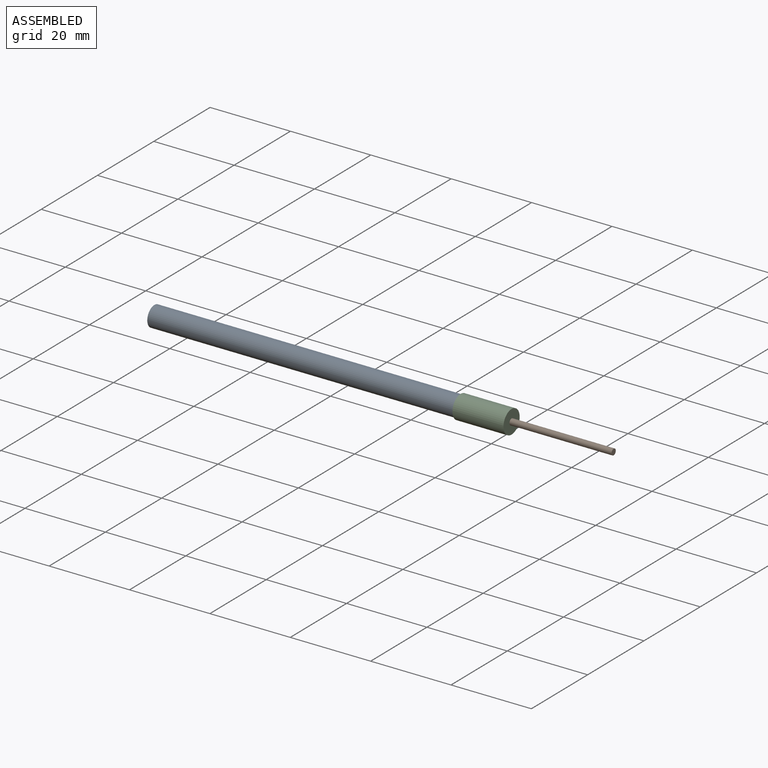
[diagram: assembled view]
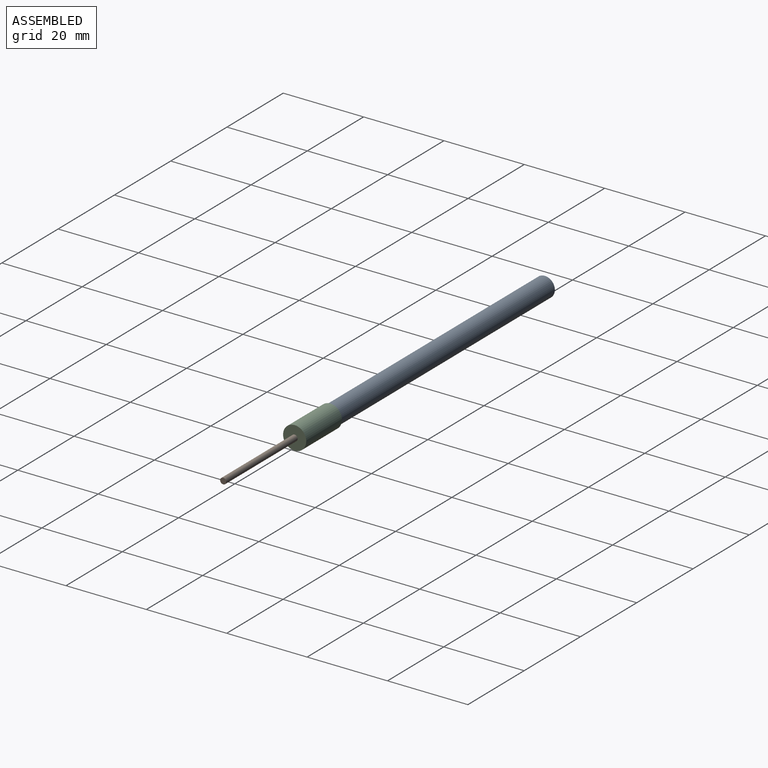
[diagram: assembled view, second angle]
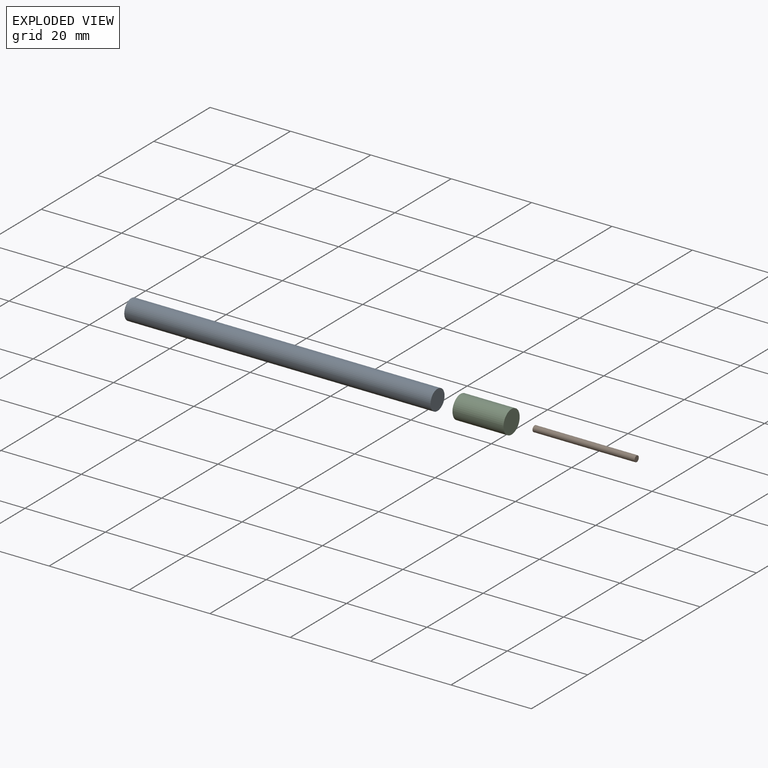
[diagram: exploded view]
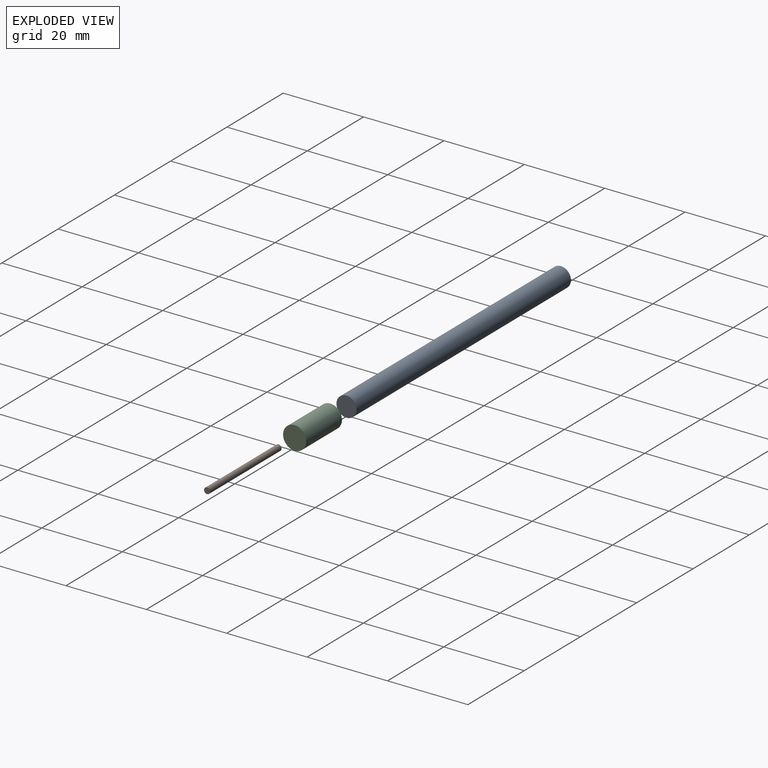
[diagram: exploded view, second angle]
ASSEMBLY  parts=3 mates=2
PART A: 3 faces, bbox 76.2x5x5 mm
  f0: plane 5x5mm, normal (1,0,0), area 19.6mm2, adj f1
  f1: cylinder r=2.5mm len=76.2mm, axis (-1,0,0), area 1196.9mm2, adj f0,f2
  f2: plane 5x5mm, normal (-1,0,0), area 19.6mm2, adj f1
PART B: 3 faces, bbox 25.4x1.5x1.5 mm
  f0: plane 1.5x1.5mm, normal (-1,0,0), area 1.8mm2, adj f2
  f1: plane 1.5x1.5mm, normal (1,0,0), area 1.8mm2, adj f2
  f2: cylinder r=0.75mm len=25.4mm, axis (-1,0,0), area 119.7mm2, adj f0,f1
PART C: 3 faces, bbox 12.7x5.8x5.8 mm
  f0: cylinder r=2.88mm len=12.7mm, axis (-1,0,0), area 229.9mm2, adj f1,f2
  f1: plane 5.76x5.76mm, normal (-1,0,0), area 26.1mm2, adj f0
  f2: plane 5.76x5.76mm, normal (1,0,0), area 26.1mm2, adj f0
PLACE A t=(-16.77,-17.03,10.98)mm
PLACE B t=(-17.28,-17.03,10.98)mm
PLACE C t=(-17.02,-17.03,10.98)mm
MATE fastened C.f0 <-> B.f2  axis (1,0,0) through (-17.02,-17.03,10.98)mm
MATE fastened A.f1 <-> C.f0  axis (1,0,0) through (-29.72,-17.03,10.98)mm
